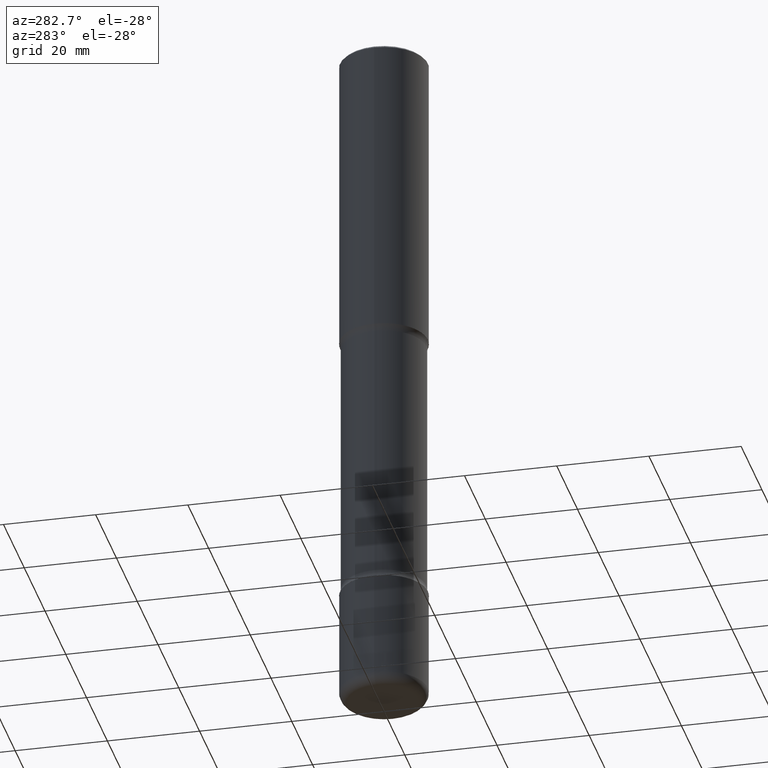
[diagram: clean part render]
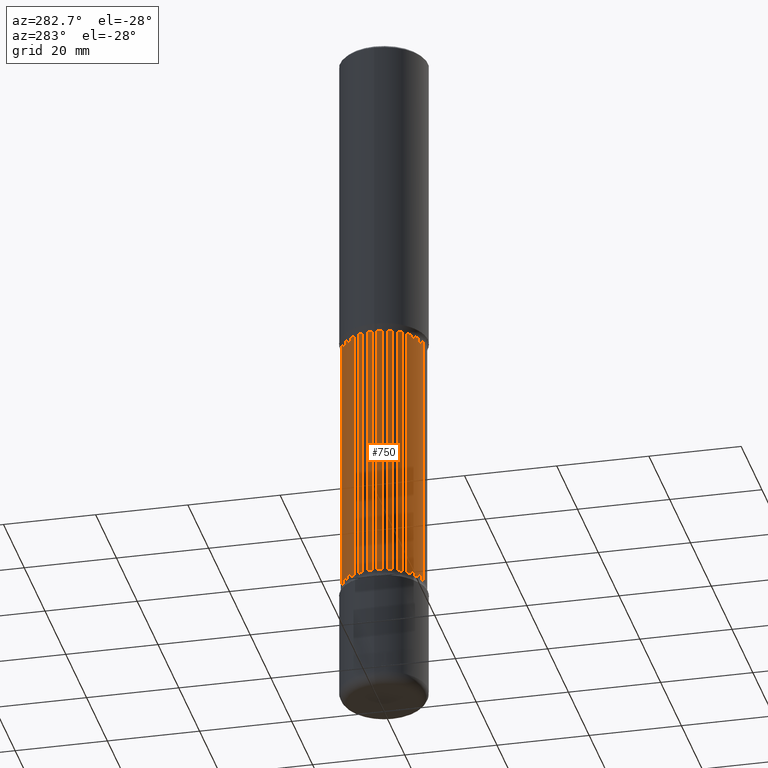
[diagram: same view with one face highlighted and labeled with its STEP entity id]
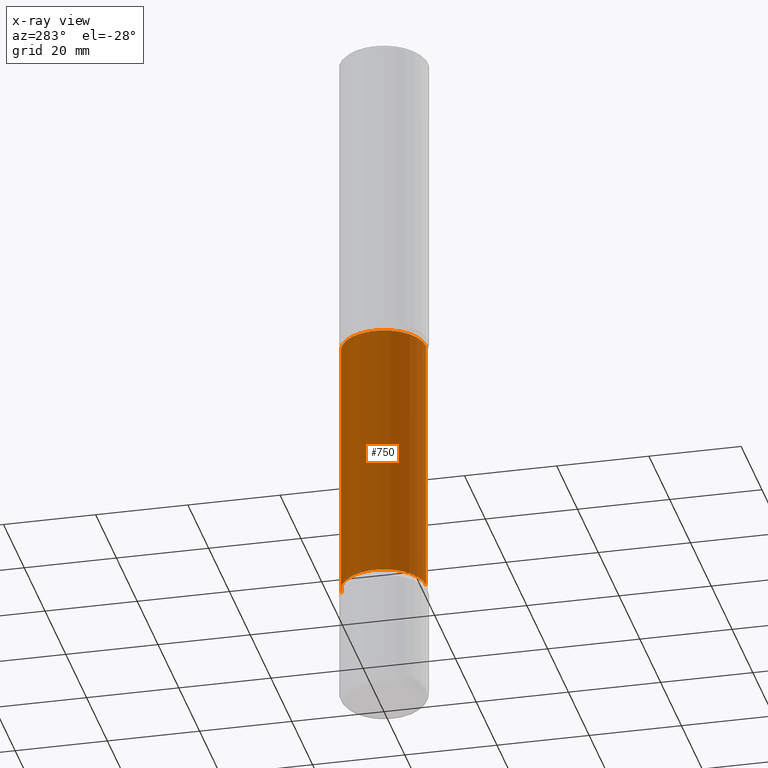
[diagram: x-ray of the same camera — body ghosted, the highlighted face saturated]
A machine part, auxiliary view. The second image highlights one B-rep face of the part: STEP entity #750.
The next image is the same camera in x-ray: the body ghosted, the highlighted face saturated — about 0% of this face is hidden behind the body in this view.
In plain terms, the highlighted cylindrical surface (partial cylindrical patch) has radius 9.144 mm, axis along (0, -0, -1).
Its self-contained STEP definition (entity closure, byte-faithful):
#15 = AXIS2_PLACEMENT_3D ( 'NONE', #396, #473, #726 ) ;
#55 = ORIENTED_EDGE ( 'NONE', *, *, #193, .T. ) ;
#58 = VERTEX_POINT ( 'NONE', #85 ) ;
#85 = CARTESIAN_POINT ( 'NONE',  ( -2.521233014180972263E-15, -0.3600000000000091460, -2.684371710435189406 ) ) ;
#105 = DIRECTION ( 'NONE',  ( 2.444343160839000462E-29, -3.493093327046566617E-15, -1.000000000000000000 ) ) ;
#127 = ORIENTED_EDGE ( 'NONE', *, *, #632, .F. ) ;
#141 = CARTESIAN_POINT ( 'NONE',  ( 1.465056100160528471E-28, -2.092030959830777523E-14, -5.991357109550794036 ) ) ;
#149 = DIRECTION ( 'NONE',  ( 2.444343160839000462E-29, -3.493093327046566617E-15, -1.000000000000000000 ) ) ;
#153 = CYLINDRICAL_SURFACE ( 'NONE', #212, 0.3599999999999999867 ) ;
#160 = CARTESIAN_POINT ( 'NONE',  ( 2.513866563967119756E-15, 0.3599999999999904388, -2.684371710435191627 ) ) ;
#193 = EDGE_CURVE ( 'NONE', #58, #610, #228, .T. ) ;
#212 = AXIS2_PLACEMENT_3D ( 'NONE', #141, #584, #717 ) ;
#228 = CIRCLE ( 'NONE', #294, 0.3599999999999997646 ) ;
#249 = CARTESIAN_POINT ( 'NONE',  ( 6.567153858282626982E-29, -9.368700968016638800E-15, -2.684371710435190739 ) ) ;
#256 = VECTOR ( 'NONE', #149, 39.37007874015748143 ) ;
#294 = AXIS2_PLACEMENT_3D ( 'NONE', #249, #683, #617 ) ;
#345 = CARTESIAN_POINT ( 'NONE',  ( -2.521233014180918226E-15, -0.3600000000000175282, -4.940628289564809705 ) ) ;
#396 = CARTESIAN_POINT ( 'NONE',  ( 1.208221919657611412E-28, -1.725001576867922693E-14, -4.940628289564810594 ) ) ;
#413 = ORIENTED_EDGE ( 'NONE', *, *, #696, .T. ) ;
#436 = CIRCLE ( 'NONE', #15, 0.3600000000000002642 ) ;
#440 = ORIENTED_EDGE ( 'NONE', *, *, #672, .F. ) ;
#452 = FACE_OUTER_BOUND ( 'NONE', #622, .T. ) ;
#473 = DIRECTION ( 'NONE',  ( 2.444343160839000742E-29, -3.493093327046566223E-15, -1.000000000000000000 ) ) ;
#550 = VERTEX_POINT ( 'NONE', #574 ) ;
#574 = CARTESIAN_POINT ( 'NONE',  ( 2.513866563967178131E-15, 0.3599999999999830003, -4.940628289564811482 ) ) ;
#584 = DIRECTION ( 'NONE',  ( 2.444343160839000742E-29, -3.493093327046566223E-15, -1.000000000000000000 ) ) ;
#591 = LINE ( 'NONE', #784, #256 ) ;
#598 = CARTESIAN_POINT ( 'NONE',  ( 2.513866563967202192E-15, 0.3599999999999790590, -5.991357109550794924 ) ) ;
#610 = VERTEX_POINT ( 'NONE', #160 ) ;
#617 = DIRECTION ( 'NONE',  ( 6.982962677686266711E-15, 1.000000000000000000, -3.035386659626961104E-15 ) ) ;
#622 = EDGE_LOOP ( 'NONE', ( #127, #55, #413, #440 ) ) ;
#632 = EDGE_CURVE ( 'NONE', #58, #637, #591, .T. ) ;
#637 = VERTEX_POINT ( 'NONE', #345 ) ;
#672 = EDGE_CURVE ( 'NONE', #637, #550, #436, .T. ) ;
#683 = DIRECTION ( 'NONE',  ( 2.444343160839000742E-29, -3.493093327046566223E-15, -1.000000000000000000 ) ) ;
#696 = EDGE_CURVE ( 'NONE', #610, #550, #712, .T. ) ;
#712 = LINE ( 'NONE', #598, #790 ) ;
#717 = DIRECTION ( 'NONE',  ( 6.982962677686265133E-15, 1.000000000000000000, -3.035386659626959132E-15 ) ) ;
#726 = DIRECTION ( 'NONE',  ( 6.982962677686265922E-15, 1.000000000000000000, -3.035386659626956765E-15 ) ) ;
#750 = ADVANCED_FACE ( 'NONE', ( #452 ), #153, .T. ) ;
#784 = CARTESIAN_POINT ( 'NONE',  ( -2.469779279197604413E-15, -0.3600000000000208589, -5.991357109550792259 ) ) ;
#790 = VECTOR ( 'NONE', #105, 39.37007874015748143 ) ;